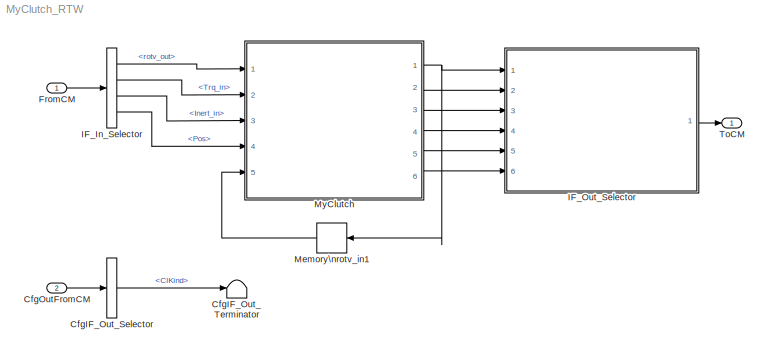
MODEL MyClutch_RTW
KIND model
CONFIG InitFcn = vehicle = 'Car'; if ~length(which('cmcmd')), cmenv; end\nMyClutch_RTW_bus
CONFIG PreLoadFcn = vehicle = 'Car'; if ~length(which('cmcmd')), cmenv; end\nMyClutch_RTW_bus
BLOCK [BusSelector] CfgIF_Out_Selector
  OutputSignals = ClKind
  Ports = [1, 1]
  SID = 9
BLOCK [Terminator] CfgIF_Out_Terminator
  SID = 10
BLOCK [Inport] CfgOutFromCM
  OutDataTypeStr = Bus: cmPTClutchCfgOut
  Port = 2
  SID = 8
BLOCK [Inport] FromCM
  OutDataTypeStr = Bus: cmPTClutchIn
  SID = 1
BLOCK [BusSelector] IF_In_Selector
  OutputSignals = rotv_out,Trq_in,Inert_in,Pos
  Ports = [1, 4]
  SID = 2
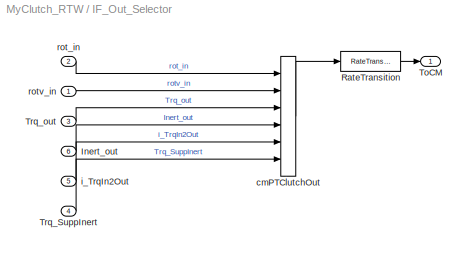
BLOCK [SubSystem] IF_Out_Selector
  OpenFcn = cmSignalSelect('SignalSelection_CB',gcb)
  Ports = [6, 1]
  RequestExecContextInheritance = off
  SID = 5
  UserData = DataTag0
  UserDataPersistent = on
BLOCK [Inport] IF_Out_Selector/Inert_out
  Port = 6
  SID = 54
BLOCK [RateTransition] IF_Out_Selector/RateTransition
  OutPortSampleTime = str2num(get_param(bdroot,'FixedStep'))
  SID = 6
BLOCK [Outport] IF_Out_Selector/ToCM
  SID = 7
  VectorParamsAs1DForOutWhenUnconnected = off
BLOCK [Inport] IF_Out_Selector/Trq_SuppInert
  Port = 4
  SID = 52
BLOCK [Inport] IF_Out_Selector/Trq_out
  Port = 3
  SID = 51
BLOCK [BusCreator] IF_Out_Selector/cmPTClutchOut
  InheritFromInputs = on
  Inputs = 6
  Ports = [6, 1]
  SID = 11
BLOCK [Inport] IF_Out_Selector/i_TrqIn2Out
  Port = 5
  SID = 53
BLOCK [Inport] IF_Out_Selector/rot_in
  Port = 2
  SID = 50
BLOCK [Inport] IF_Out_Selector/rotv_in
  SID = 49
BLOCK [Memory] Memory\nrotv_in1
  SID = 18
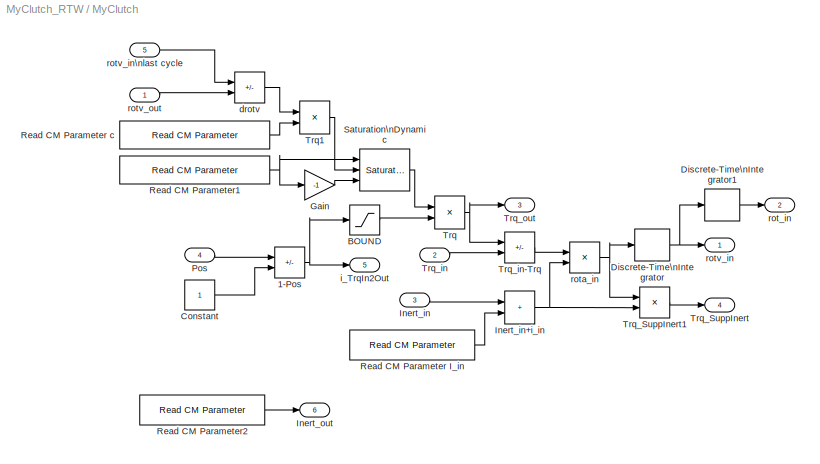
BLOCK [SubSystem] MyClutch
  Ports = [5, 6]
  RequestExecContextInheritance = off
  SID = 19
BLOCK [Sum] MyClutch/1-Pos
  IconShape = rectangular
  Inputs = -+
  Ports = [2, 1]
  SID = 25
BLOCK [Saturate] MyClutch/BOUND
  LowerLimit = 0
  SID = 26
  UpperLimit = 1
BLOCK [Constant] MyClutch/Constant
  SID = 27
BLOCK [DiscreteIntegrator] MyClutch/Discrete-Time\nIntegrator
  ICPrevOutput = DiscIntNeverNeededParam
  ICPrevScaledInput = DiscIntNeverNeededParam
  IntegratorMethod = Integration: Backward Euler
  Ports = [1, 1]
  SID = 28
  SampleTime = -1
BLOCK [DiscreteIntegrator] MyClutch/Discrete-Time\nIntegrator1
  ICPrevOutput = DiscIntNeverNeededParam
  ICPrevScaledInput = DiscIntNeverNeededParam
  IntegratorMethod = Integration: Backward Euler
  Ports = [1, 1]
  SID = 29
  SampleTime = -1
BLOCK [Gain] MyClutch/Gain
  Gain = -1
  SID = 30
BLOCK [Inport] MyClutch/Inert_in
  Port = 3
  SID = 22
BLOCK [Sum] MyClutch/Inert_in+i_in
  IconShape = rectangular
  Ports = [2, 1]
  SID = 31
BLOCK [Outport] MyClutch/Inert_out
  Port = 6
  SID = 48
  VectorParamsAs1DForOutWhenUnconnected = off
BLOCK [Inport] MyClutch/Pos
  Port = 4
  SID = 23
BLOCK [Reference] MyClutch/Read CM Parameter I_in  REF=CarMaker4SL/Read CM Parameter
  Ports = [0, 1]
  SID = 32
  SourceBlock = CarMaker4SL/Read CM Parameter
  SourceProductName = CarMaker4SL
  SourceType = Read CarMaker Info File Parameter
  xdefaults = 1e-4
  xfile = Vehicle
  xkey = PowerTrain.Clutch.I_in
  xmuxed = on
  xnout = 1
BLOCK [Reference] MyClutch/Read CM Parameter c  REF=CarMaker4SL/Read CM Parameter
  Ports = [0, 1]
  SID = 33
  SourceBlock = CarMaker4SL/Read CM Parameter
  SourceProductName = CarMaker4SL
  SourceType = Read CarMaker Info File Parameter
  xdefaults = []
  xfile = Vehicle
  xkey = PowerTrain.MyClutch.c
  xmuxed = on
  xnout = 1
BLOCK [Reference] MyClutch/Read CM Parameter1  REF=CarMaker4SL/Read CM Parameter
  Ports = [0, 1]
  SID = 34
  SourceBlock = CarMaker4SL/Read CM Parameter
  SourceProductName = CarMaker4SL
  SourceType = Read CarMaker Info File Parameter
  xdefaults = 500
  xfile = Vehicle
  xkey = PowerTrain.Clutch.Trq_max
  xmuxed = on
  xnout = 1
BLOCK [Reference] MyClutch/Read CM Parameter2  REF=CarMaker4SL/Read CM Parameter
  Ports = [0, 1]
  SID = 35
  SourceBlock = CarMaker4SL/Read CM Parameter
  SourceProductName = CarMaker4SL
  SourceType = Read CarMaker Info File Parameter
  xdefaults = 1e-4
  xfile = Vehicle
  xkey = PowerTrain.Clutch.I_out
  xmuxed = on
  xnout = 1
BLOCK [Reference] MyClutch/Saturation\nDynamic  REF=simulink/Discontinuities/Saturation\nDynamic
  DoSatur = off
  FunctionWithSeparateData = off
  LockScale = off
  OutDataType = sfix(16)
  OutDataTypeStr = Inherit: Same as second input
  OutMax = []
  OutMin = []
  OutScaling = 2^-10
  OutputDataTypeScalingMode = Same as second input
  Ports = [3, 1]
  RTWMemSecDataConstants = Inherit from model
  RTWMemSecDataInternal = Inherit from model
  RTWMemSecDataParameters = Inherit from model
  RTWMemSecFuncExecute = Inherit from model
  RTWMemSecFuncInitTerm = Inherit from model
  RndMeth = Floor
  SID = 36
  ShowPortLabels = FromPortIcon
  SourceBlock = simulink/Discontinuities/Saturation\nDynamic
  SourceProductBaseCode = SL
  SourceType = Saturation Dynamic
  SystemSampleTime = -1
BLOCK [Product] MyClutch/Trq
  Ports = [2, 1]
  RndMeth = Zero
  SID = 37
BLOCK [Product] MyClutch/Trq1
  Ports = [2, 1]
  RndMeth = Zero
  SID = 38
BLOCK [Outport] MyClutch/Trq_SuppInert
  Port = 4
  SID = 46
  VectorParamsAs1DForOutWhenUnconnected = off
BLOCK [Product] MyClutch/Trq_SuppInert1
  Ports = [2, 1]
  RndMeth = Zero
  SID = 39
BLOCK [Inport] MyClutch/Trq_in
  Port = 2
  SID = 21
BLOCK [Sum] MyClutch/Trq_in-Trq
  IconShape = rectangular
  Inputs = -+
  Ports = [2, 1]
  SID = 40
BLOCK [Outport] MyClutch/Trq_out
  Port = 3
  SID = 45
  VectorParamsAs1DForOutWhenUnconnected = off
BLOCK [Sum] MyClutch/drotv
  IconShape = rectangular
  Inputs = +-
  Ports = [2, 1]
  SID = 41
BLOCK [Outport] MyClutch/i_TrqIn2Out
  Port = 5
  SID = 47
  VectorParamsAs1DForOutWhenUnconnected = off
BLOCK [Outport] MyClutch/rot_in
  Port = 2
  SID = 44
  VectorParamsAs1DForOutWhenUnconnected = off
BLOCK [Product] MyClutch/rota_in
  Inputs = */
  Ports = [2, 1]
  SID = 42
BLOCK [Outport] MyClutch/rotv_in
  SID = 43
  VectorParamsAs1DForOutWhenUnconnected = off
BLOCK [Inport] MyClutch/rotv_in\nlast cycle
  Port = 5
  SID = 24
BLOCK [Inport] MyClutch/rotv_out
  SID = 20
BLOCK [Outport] ToCM
  OutDataTypeStr = Bus: cmPTClutchOut
  SID = 4
  VectorParamsAs1DForOutWhenUnconnected = off
LINE CfgIF_Out_Selector:1 -> CfgIF_Out_Terminator:1
LINE CfgOutFromCM:1 -> CfgIF_Out_Selector:1
LINE FromCM:1 -> IF_In_Selector:1
LINE IF_In_Selector:1 -> MyClutch:1
LINE IF_In_Selector:2 -> MyClutch:2
LINE IF_In_Selector:3 -> MyClutch:3
LINE IF_In_Selector:4 -> MyClutch:4
LINE IF_Out_Selector/Inert_out:1 -> IF_Out_Selector/cmPTClutchOut:4
LINE IF_Out_Selector/RateTransition:1 -> IF_Out_Selector/ToCM:1
LINE IF_Out_Selector/Trq_SuppInert:1 -> IF_Out_Selector/cmPTClutchOut:6
LINE IF_Out_Selector/Trq_out:1 -> IF_Out_Selector/cmPTClutchOut:3
LINE IF_Out_Selector/cmPTClutchOut:1 -> IF_Out_Selector/RateTransition:1
LINE IF_Out_Selector/i_TrqIn2Out:1 -> IF_Out_Selector/cmPTClutchOut:5
LINE IF_Out_Selector/rot_in:1 -> IF_Out_Selector/cmPTClutchOut:1
LINE IF_Out_Selector/rotv_in:1 -> IF_Out_Selector/cmPTClutchOut:2
LINE IF_Out_Selector:1 -> ToCM:1
LINE Memory\nrotv_in1:1 -> MyClutch:5
NET MyClutch/1-Pos:1 -> MyClutch/BOUND:1, MyClutch/i_TrqIn2Out:1
LINE MyClutch/BOUND:1 -> MyClutch/Trq:2
LINE MyClutch/Constant:1 -> MyClutch/1-Pos:2
LINE MyClutch/Discrete-Time\nIntegrator1:1 -> MyClutch/rot_in:1
NET MyClutch/Discrete-Time\nIntegrator:1 -> MyClutch/Discrete-Time\nIntegrator1:1, MyClutch/rotv_in:1
LINE MyClutch/Gain:1 -> MyClutch/Saturation\nDynamic:3
NET MyClutch/Inert_in+i_in:1 -> MyClutch/Trq_SuppInert1:2, MyClutch/rota_in:2
LINE MyClutch/Inert_in:1 -> MyClutch/Inert_in+i_in:1
LINE MyClutch/Pos:1 -> MyClutch/1-Pos:1
LINE MyClutch/Read CM Parameter I_in:1 -> MyClutch/Inert_in+i_in:2
LINE MyClutch/Read CM Parameter c:1 -> MyClutch/Trq1:2
NET MyClutch/Read CM Parameter1:1 -> MyClutch/Gain:1, MyClutch/Saturation\nDynamic:1
LINE MyClutch/Read CM Parameter2:1 -> MyClutch/Inert_out:1
LINE MyClutch/Saturation\nDynamic:1 -> MyClutch/Trq:1
LINE MyClutch/Trq1:1 -> MyClutch/Saturation\nDynamic:2
NET MyClutch/Trq:1 -> MyClutch/Trq_in-Trq:1, MyClutch/Trq_out:1
LINE MyClutch/Trq_SuppInert1:1 -> MyClutch/Trq_SuppInert:1
LINE MyClutch/Trq_in-Trq:1 -> MyClutch/rota_in:1
LINE MyClutch/Trq_in:1 -> MyClutch/Trq_in-Trq:2
LINE MyClutch/drotv:1 -> MyClutch/Trq1:1
NET MyClutch/rota_in:1 -> MyClutch/Discrete-Time\nIntegrator:1, MyClutch/Trq_SuppInert1:1
LINE MyClutch/rotv_in\nlast cycle:1 -> MyClutch/drotv:1
LINE MyClutch/rotv_out:1 -> MyClutch/drotv:2
NET MyClutch:1 -> IF_Out_Selector:1, Memory\nrotv_in1:1
LINE MyClutch:2 -> IF_Out_Selector:2
LINE MyClutch:3 -> IF_Out_Selector:3
LINE MyClutch:4 -> IF_Out_Selector:4
LINE MyClutch:5 -> IF_Out_Selector:5
LINE MyClutch:6 -> IF_Out_Selector:6
note: NET lines group one-source signal fan-out (src -> all destinations, sorted); 1:1 wires keep LINE
